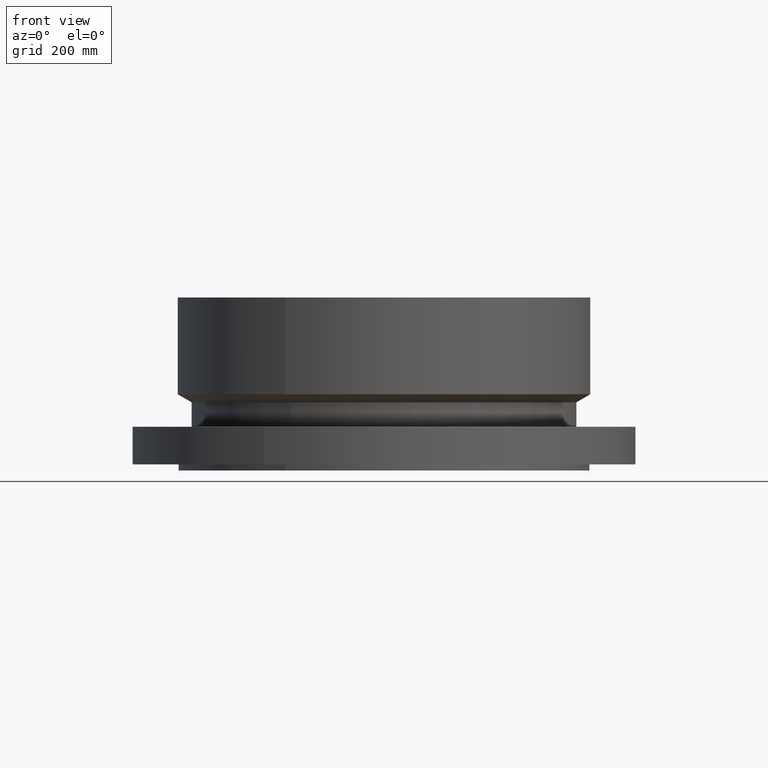
[diagram: clean part render]
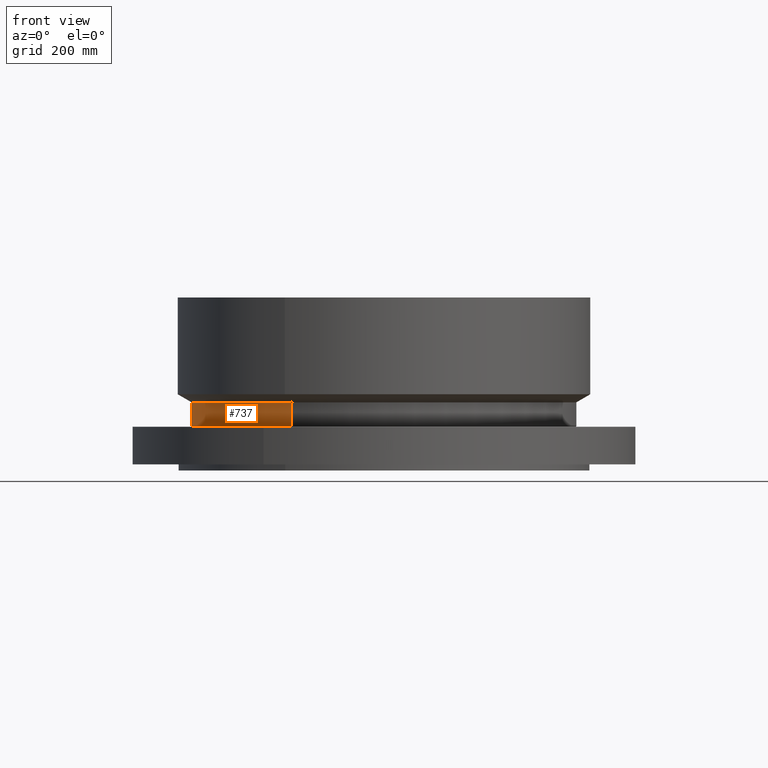
[diagram: same view with one face highlighted and labeled with its STEP entity id]
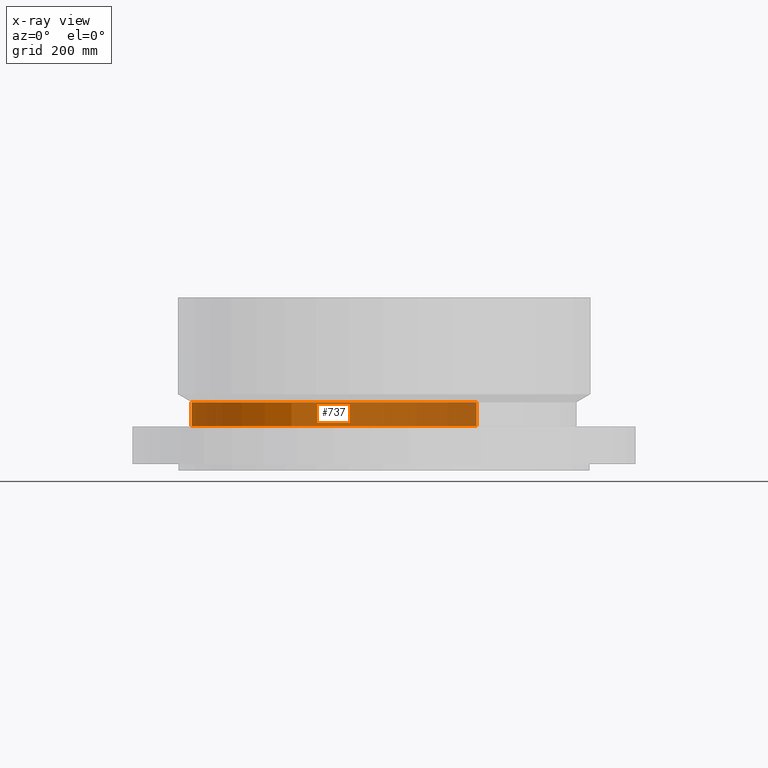
[diagram: x-ray of the same camera — body ghosted, the highlighted face saturated]
A machine part, front view. The second image highlights one B-rep face of the part: STEP entity #737.
The next image is the same camera in x-ray: the body ghosted, the highlighted face saturated — about 65% of this face is hidden behind the body in this view.
In plain terms, the highlighted cylindrical surface (partial cylindrical patch) has radius 350.774 mm, axis along (0, 0, -1).
Its self-contained STEP definition (entity closure, byte-faithful):
#685=AXIS2_PLACEMENT_3D('Circle Axis2P3D',#683,#684,$) ;
#698=AXIS2_PLACEMENT_3D('Cylinder Axis2P3D',#695,#696,#697) ;
#728=AXIS2_PLACEMENT_3D('Circle Axis2P3D',#726,#727,$) ;
#661=CARTESIAN_POINT('Vertex',(6.62086668815,12.1194151798,2.72848076212)) ;
#668=CARTESIAN_POINT('Vertex',(-6.62086668815,-12.1194151798,2.72848076212)) ;
#683=CARTESIAN_POINT('Axis2P3D Location',(0.,0.,2.72848076212)) ;
#695=CARTESIAN_POINT('Axis2P3D Location',(0.,0.,5.74975000002)) ;
#700=CARTESIAN_POINT('Line Origine',(6.62086668815,12.1194151798,3.58299038107)) ;
#704=CARTESIAN_POINT('Vertex',(6.62086668815,12.1194151798,4.43750000002)) ;
#711=CARTESIAN_POINT('Vertex',(-6.62086668815,-12.1194151798,4.43750000002)) ;
#714=CARTESIAN_POINT('Line Origine',(-6.62086668815,-12.1194151798,3.58299038107)) ;
#726=CARTESIAN_POINT('Axis2P3D Location',(0.,0.,4.43750000002)) ;
#684=DIRECTION('Axis2P3D Direction',(-0.,0.,0.0393700787402)) ;
#696=DIRECTION('Axis2P3D Direction',(0.,0.,-0.0393700787402)) ;
#697=DIRECTION('Axis2P3D XDirection',(-0.0188750212049,-0.0345504945626,0.)) ;
#701=DIRECTION('Vector Direction',(0.,0.,-0.0393700787402)) ;
#715=DIRECTION('Vector Direction',(0.,0.,-0.0393700787402)) ;
#727=DIRECTION('Axis2P3D Direction',(0.,0.,-0.0393700787402)) ;
#702=VECTOR('Line Direction',#701,0.0393700787402) ;
#716=VECTOR('Line Direction',#715,0.0393700787402) ;
#732=ORIENTED_EDGE('',*,*,#687,.F.) ;
#733=ORIENTED_EDGE('',*,*,#718,.T.) ;
#734=ORIENTED_EDGE('',*,*,#730,.T.) ;
#735=ORIENTED_EDGE('',*,*,#706,.F.) ;
#737=ADVANCED_FACE('PartBody',(#736),#699,.T.) ;
#686=CIRCLE('generated circle',#685,13.8100000001) ;
#729=CIRCLE('generated circle',#728,13.8100000001) ;
#699=CYLINDRICAL_SURFACE('generated cylinder',#698,13.8100000001) ;
#687=EDGE_CURVE('',#669,#662,#686,.F.) ;
#706=EDGE_CURVE('',#662,#705,#703,.F.) ;
#718=EDGE_CURVE('',#669,#712,#717,.F.) ;
#730=EDGE_CURVE('',#712,#705,#729,.T.) ;
#731=EDGE_LOOP('',(#732,#733,#734,#735)) ;
#736=FACE_OUTER_BOUND('',#731,.T.) ;
#703=LINE('Line',#700,#702) ;
#717=LINE('Line',#714,#716) ;
#662=VERTEX_POINT('',#661) ;
#669=VERTEX_POINT('',#668) ;
#705=VERTEX_POINT('',#704) ;
#712=VERTEX_POINT('',#711) ;